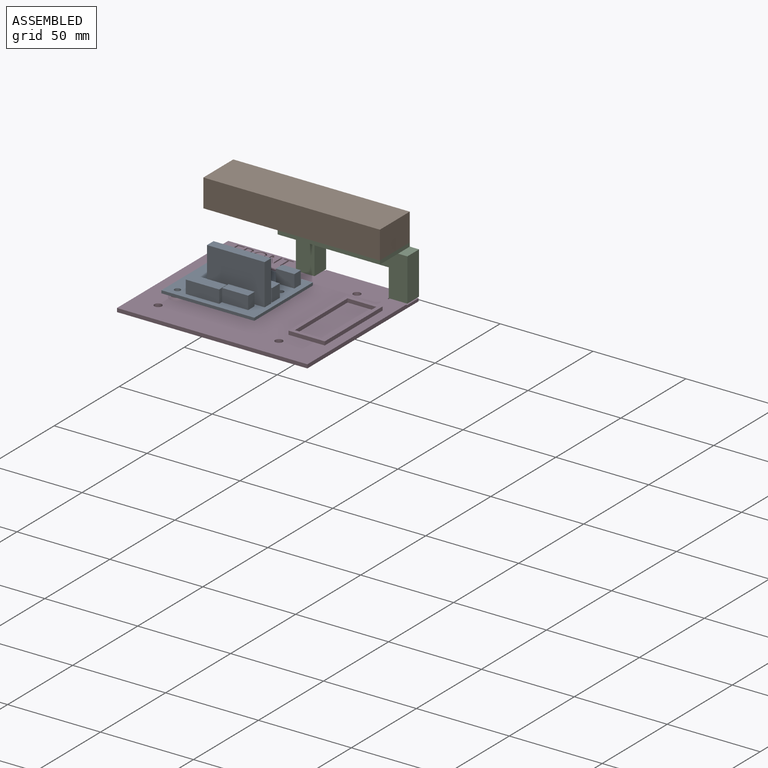
[diagram: assembled view]
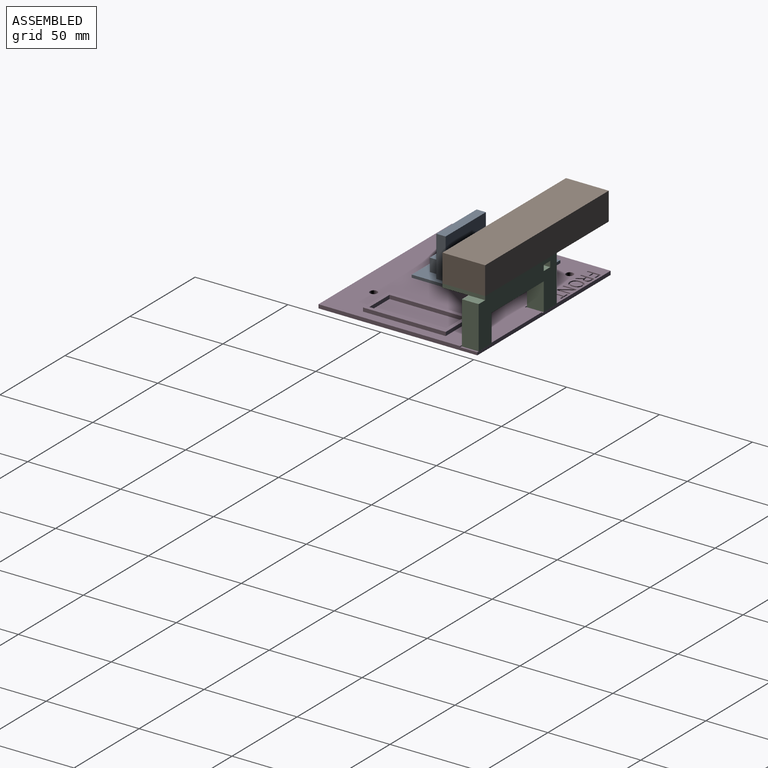
[diagram: assembled view, second angle]
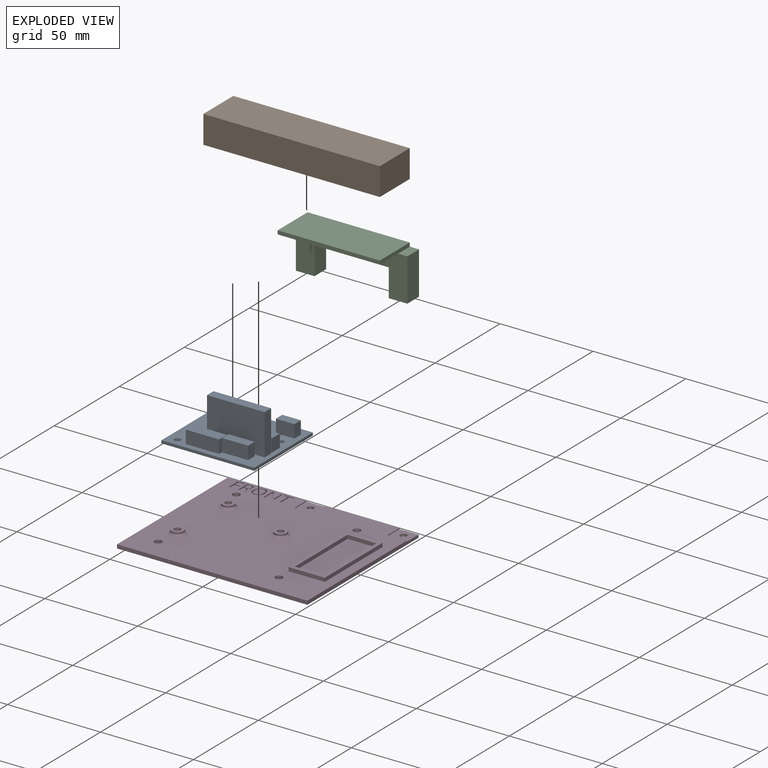
[diagram: exploded view]
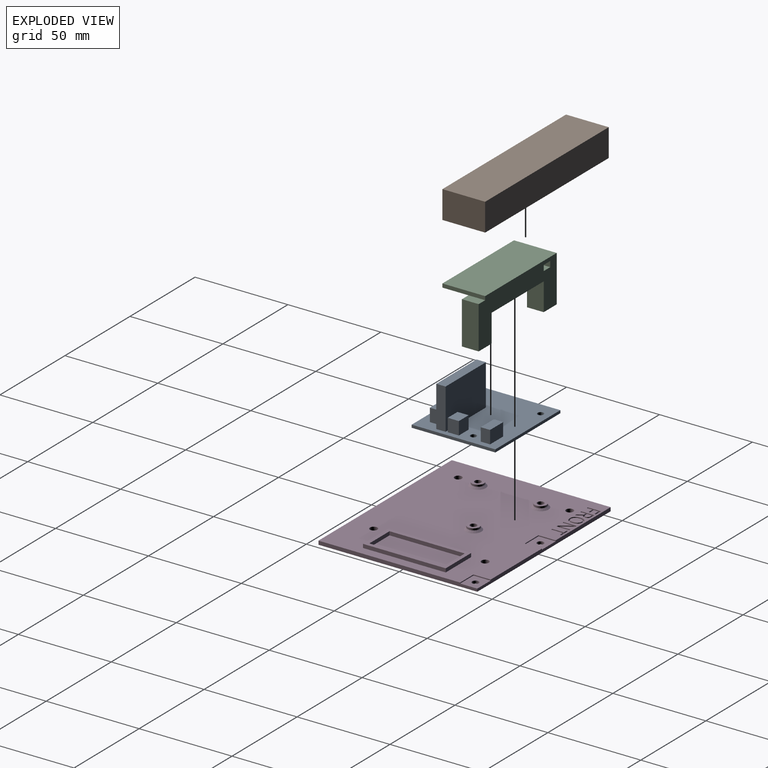
[diagram: exploded view, second angle]
ASSEMBLY  parts=4 mates=2
PART A: 34 faces, bbox 50x45x23.5 mm
  f0: plane 50x45mm, normal (0,0,1), area 1801.1mm2, adj f1,f2,f3,f4,f6,f7,f8,f9
  f1: plane 50x1.5mm, normal (0,-1,0), area 75mm2, adj f0,f2,f4,f5
  f2: plane 45x1.5mm, normal (1,0,0), area 67.5mm2, adj f0,f1,f3,f5
  f3: plane 50x1.5mm, normal (0,1,0), area 75mm2, adj f0,f2,f4,f5
  f4: plane 45x1.5mm, normal (-1,0,0), area 67.5mm2, adj f0,f1,f3,f5
  f5: plane 50x45mm, normal (0,0,-1), area 2225.9mm2, adj f1,f2,f3,f4,f6,f7,f8
  f6: cylinder r=1.6mm len=3.2mm, axis (0,0,1), area 15.1mm2, adj f0,f5
  f7: cylinder r=1.6mm len=3.2mm, axis (0,0,1), area 15.1mm2, adj f0,f5
  f8: cylinder r=1.6mm len=3.2mm, axis (0,0,1), area 15.1mm2, adj f0,f5
  f9: plane 18x7mm, normal (0,-1,0), area 126mm2, adj f0,f10,f12,f13
  f10: plane 7x5.9mm, normal (1,0,0), area 41.3mm2, adj f0,f9,f11,f13
  f11: plane 18x7mm, normal (0,1,0), area 126mm2, adj f0,f10,f12,f13
  f12: plane 7x5.9mm, normal (-1,0,0), area 41.3mm2, adj f0,f9,f11,f13
  f13: plane 18x5.9mm, normal (0,0,1), area 106.2mm2, adj f9,f10,f11,f12
  f14: plane 14x7mm, normal (0,-1,0), area 98mm2, adj f0,f15,f17,f18
  f15: plane 7x4.9mm, normal (1,0,0), area 34.3mm2, adj f0,f14,f16,f18
  f16: plane 14x7mm, normal (0,1,0), area 98mm2, adj f0,f15,f17,f18
  f17: plane 7x4.9mm, normal (-1,0,0), area 34.3mm2, adj f0,f14,f16,f18
  f18: plane 14x4.9mm, normal (0,0,1), area 68.6mm2, adj f14,f15,f16,f17
  f19: plane 7.5x7mm, normal (0,-1,0), area 52.5mm2, adj f0,f20,f22,f23
  f20: plane 7x6mm, normal (1,0,0), area 42mm2, adj f0,f19,f21,f23
  f21: plane 7.5x7mm, normal (0,1,0), area 52.5mm2, adj f0,f20,f22,f23
  f22: plane 7x6mm, normal (-1,0,0), area 42mm2, adj f0,f19,f21,f23
  f23: plane 7.5x6mm, normal (0,0,1), area 45mm2, adj f19,f20,f21,f22
  f24: plane 10x7mm, normal (0,-1,0), area 70mm2, adj f0,f25,f27,f28
  f25: plane 7x5mm, normal (1,0,0), area 35mm2, adj f0,f24,f26,f28
  f26: plane 10x7mm, normal (0,1,0), area 70mm2, adj f0,f25,f27,f28
  f27: plane 7x5mm, normal (-1,0,0), area 35mm2, adj f0,f24,f26,f28
  f28: plane 10x5mm, normal (0,0,1), area 50mm2, adj f24,f25,f26,f27
  f29: plane 31x22mm, normal (0,-1,0), area 682mm2, adj f0,f30,f32,f33
  f30: plane 22x5mm, normal (1,0,0), area 110mm2, adj f0,f29,f31,f33
  f31: plane 31x22mm, normal (0,1,0), area 682mm2, adj f0,f30,f32,f33
  f32: plane 22x5mm, normal (-1,0,0), area 110mm2, adj f0,f29,f31,f33
  f33: plane 31x5mm, normal (0,0,1), area 155mm2, adj f29,f30,f31,f32
PART B: 6 faces, bbox 95x23x15 mm
  f0: plane 95x15mm, normal (0,-1,0), area 1425mm2, adj f1,f3,f4,f5
  f1: plane 23x15mm, normal (1,0,0), area 345mm2, adj f0,f2,f4,f5
  f2: plane 95x15mm, normal (0,1,0), area 1425mm2, adj f1,f3,f4,f5
  f3: plane 23x15mm, normal (-1,0,0), area 345mm2, adj f0,f2,f4,f5
  f4: plane 95x23mm, normal (0,0,1), area 2185mm2, adj f0,f1,f2,f3
  f5: plane 95x23mm, normal (0,0,-1), area 2185mm2, adj f0,f1,f2,f3
PART C: 21 faces, bbox 60x23x25 mm
  f0: plane 10x9mm, normal (0,0,-1), area 85.1mm2, adj f1,f4,f5,f11,f18
  f1: plane 60x25mm, normal (0,1,0), area 875mm2, adj f0,f2,f5,f6,f7,f12,f13,f14
  f2: plane 23x9mm, normal (1,0,0), area 207mm2, adj f1,f4,f7,f13
  f3: plane 55x2mm, normal (0,-1,0), area 110mm2, adj f5,f6,f12,f14
  f4: plane 60x23mm, normal (0,-1,0), area 765mm2, adj f0,f2,f5,f7,f12,f13,f15,f16
  f5: plane 25x23mm, normal (-1,0,0), area 253mm2, adj f0,f1,f3,f4,f6,f12
  f6: plane 55x23mm, normal (0,0,1), area 1265mm2, adj f1,f3,f5,f14
  f7: plane 10x9mm, normal (0,0,-1), area 85.1mm2, adj f1,f2,f4,f9,f20
  f8: cone r=0mm half-angle=59deg, axis (0,0,-1), area 5.7mm2, adj f9
  f9: cylinder r=1.25mm len=10mm, axis (0,0,-1), area 78.5mm2, adj f7,f8
  f10: cone r=0mm half-angle=59deg, axis (0,0,-1), area 5.7mm2, adj f11
  f11: cylinder r=1.25mm len=10mm, axis (0,0,-1), area 78.5mm2, adj f0,f10
  f12: plane 55x23mm, normal (0,0,-1), area 815mm2, adj f1,f3,f4,f5,f14,f16,f17
  f13: plane 9x5mm, normal (0,0,1), area 45mm2, adj f1,f2,f4,f14
  f14: plane 23x2mm, normal (1,0,0), area 46mm2, adj f1,f3,f6,f12,f13
  f15: plane 9x5mm, normal (0,0,1), area 45mm2, adj f1,f4,f16,f17
  f16: plane 9x3mm, normal (-1,0,0), area 27mm2, adj f1,f4,f12,f15
  f17: plane 9x3mm, normal (1,0,0), area 27mm2, adj f1,f4,f12,f15
  f18: plane 15x9mm, normal (1,0,0), area 135mm2, adj f0,f1,f4,f19
  f19: plane 40x9mm, normal (0,0,-1), area 360mm2, adj f1,f4,f18,f20
  f20: plane 15x9mm, normal (-1,0,0), area 135mm2, adj f1,f4,f7,f19
PART D: 115 faces, bbox 102.5x85.5x4 mm
  f0: plane 85.5x2mm, normal (1,0,0), area 166.4mm2, adj f1,f4,f6,f8,f113,f114
  f1: plane 102.5x2mm, normal (0,1,0), area 194.6mm2, adj f0,f4,f7,f8,f108,f110,f111,f112
  f2: cylinder r=1.75mm len=3.5mm, axis (0,0,1), area 16.5mm2, adj f8,f114
  f3: cylinder r=1.75mm len=3.5mm, axis (0,0,1), area 16.5mm2, adj f8,f111
  f4: plane 102.5x85.5mm, normal (0,0,1), area 7389.7mm2, adj f0,f1,f6,f7,f9,f10,f11,f12
  f5: plane 44.5x19.5mm, normal (0,0,1), area 240mm2, adj f13,f14,f15,f16,f17,f18,f19,f20
  f6: plane 102.5x2mm, normal (0,-1,0), area 205mm2, adj f0,f4,f7,f8
  f7: plane 85.5x2mm, normal (-1,0,0), area 171mm2, adj f1,f4,f6,f8
  f8: plane 102.5x85.5mm, normal (0,0,-1), area 8665.4mm2, adj f0,f1,f2,f3,f6,f7,f9,f10
  f9: cylinder r=2mm len=4mm, axis (0,0,1), area 25.1mm2, adj f4,f8
  f10: cylinder r=2mm len=4mm, axis (0,0,1), area 25.1mm2, adj f4,f8
  f11: cylinder r=2mm len=4mm, axis (0,0,1), area 25.1mm2, adj f4,f8
  f12: cylinder r=2mm len=4mm, axis (0,0,1), area 25.1mm2, adj f4,f8
  f13: plane 44.5x2mm, normal (-1,0,0), area 89mm2, adj f4,f5,f14,f16
  f14: plane 19.5x2mm, normal (0,-1,0), area 39mm2, adj f4,f5,f13,f15
  f15: plane 44.5x2mm, normal (1,0,0), area 89mm2, adj f4,f5,f14,f16
  f16: plane 19.5x2mm, normal (0,1,0), area 39mm2, adj f4,f5,f13,f15
  f17: plane 40.5x2mm, normal (1,0,0), area 81mm2, adj f5,f18,f20,f21
  f18: plane 15.5x2mm, normal (0,1,0), area 31mm2, adj f5,f17,f19,f21
  f19: plane 40.5x2mm, normal (-1,0,0), area 81mm2, adj f5,f18,f20,f21
  f20: plane 15.5x2mm, normal (0,-1,0), area 31mm2, adj f5,f17,f19,f21
  f21: plane 40.5x15.5mm, normal (0,0,1), area 627.7mm2, adj f17,f18,f19,f20
  f22: cylinder r=1.75mm len=4mm, axis (0,0,1), area 44mm2, adj f8,f102
  f23: cylinder r=1.75mm len=4mm, axis (0,0,1), area 44mm2, adj f8,f104
  f24: cylinder r=1.75mm len=4mm, axis (0,0,1), area 44mm2, adj f8,f100
  f25: plane 1x0.76mm, normal (0,-1,0), area 0.8mm2, adj f4,f26,f39,f40
  f26: plane 4x1mm, normal (1,0,0), area 4mm2, adj f4,f25,f27,f40
  f27: extruded ~1x1mm, area 1mm2, adj f4,f26,f28,f40
  f28: extruded ~1x0.83mm, area 0.8mm2, adj f4,f27,f29,f40
  f29: plane 1x0.04mm, normal (0,-1,0), area 0mm2, adj f4,f28,f30,f40
  f30: plane 5.83x3.8mm, normal (-0.84,-0.55,0), area 7mm2, adj f4,f29,f31,f40
  f31: plane 1x0.92mm, normal (0,-1,0), area 0.9mm2, adj f4,f30,f32,f40
  f32: plane 6.97x1mm, normal (1,0,0), area 7mm2, adj f4,f31,f33,f40
  f33: plane 1x0.75mm, normal (0,1,0), area 0.7mm2, adj f4,f32,f34,f40
  f34: plane 3.96x1mm, normal (-1,0,0), area 4mm2, adj f4,f33,f35,f40
  f35: extruded ~1.89x1mm, area 1.9mm2, adj f4,f34,f36,f40
  f36: plane 1x0.04mm, normal (0,1,0), area 0mm2, adj f4,f35,f37,f40
  f37: plane 5.85x3.81mm, normal (0.84,0.55,0), area 7mm2, adj f4,f36,f38,f40
  f38: plane 1x0.93mm, normal (0,1,0), area 0.9mm2, adj f4,f37,f39,f40
  f39: plane 6.97x1mm, normal (-1,0,0), area 7mm2, adj f4,f25,f38,f40
  f40: plane 6.97x5.45mm, normal (0,0,1), area 16.1mm2, adj f25,f26,f27,f28,f29,f30,f31,f32
  f41: plane 2.89x1mm, normal (0,1,0), area 2.9mm2, adj f4,f42,f50,f51
  f42: plane 1x0.72mm, normal (-1,0,0), area 0.7mm2, adj f4,f41,f43,f51
  f43: plane 2.89x1mm, normal (0,-1,0), area 2.9mm2, adj f4,f42,f44,f51
  f44: plane 2.55x1mm, normal (-1,0,0), area 2.6mm2, adj f4,f43,f45,f51
  f45: plane 3.08x1mm, normal (0,1,0), area 3.1mm2, adj f4,f44,f46,f51
  f46: plane 1x0.72mm, normal (-1,0,0), area 0.7mm2, adj f4,f45,f47,f51
  f47: plane 3.89x1mm, normal (0,-1,0), area 3.9mm2, adj f4,f46,f48,f51
  f48: plane 6.97x1mm, normal (1,0,0), area 7mm2, adj f4,f47,f49,f51
  f49: plane 1x0.81mm, normal (0,1,0), area 0.8mm2, adj f4,f48,f50,f51
  f50: plane 2.98x1mm, normal (-1,0,0), area 3mm2, adj f4,f41,f49,f51
  f51: plane 6.97x3.89mm, normal (0,0,1), area 10mm2, adj f41,f42,f43,f44,f45,f46,f47,f48
  f52: extruded ~1.76x1mm, area 2mm2, adj f53,f66,f68,f69
  f53: extruded ~1.74x1mm, area 2mm2, adj f52,f54,f68,f69
  f54: extruded ~2.13x1mm, area 2.3mm2, adj f53,f55,f68,f69
  f55: extruded ~2.15x1mm, area 2.3mm2, adj f54,f56,f68,f69
  f56: extruded ~1.75x1mm, area 2mm2, adj f55,f57,f68,f69
  f57: extruded ~1.75x1mm, area 2mm2, adj f56,f58,f68,f69
  f58: extruded ~2.15x1mm, area 2.3mm2, adj f57,f66,f68,f69
  f59: extruded ~2.35x1mm, area 2.6mm2, adj f4,f60,f67,f68
  f60: extruded ~2.38x1mm, area 2.6mm2, adj f4,f59,f61,f68
  f61: extruded ~2.64x1mm, area 2.8mm2, adj f4,f60,f62,f68
  f62: extruded ~2.66x1mm, area 2.9mm2, adj f4,f61,f63,f68
  f63: extruded ~2.38x1mm, area 2.6mm2, adj f4,f62,f64,f68
  f64: extruded ~2.35x1mm, area 2.6mm2, adj f4,f63,f65,f68
  f65: extruded ~2.63x1mm, area 2.8mm2, adj f4,f64,f67,f68
  f66: extruded ~2.13x1mm, area 2.3mm2, adj f52,f58,f68,f69
  f67: extruded ~2.63x1mm, area 2.8mm2, adj f4,f59,f65,f68
  f68: plane 7.18x6.42mm, normal (0,0,1), area 15.4mm2, adj f52,f53,f54,f55,f56,f57,f58,f59
  f69: plane 5.74x4.7mm, normal (0,0,1), area 22.4mm2, adj f52,f53,f54,f55,f56,f57,f58,f66
  f70: plane 1.05x1mm, normal (0,1,0), area 1.1mm2, adj f71,f86,f88,f89
  f71: extruded ~1.31x1mm, area 1.4mm2, adj f70,f72,f88,f89
  f72: extruded ~1x1mm, area 1.1mm2, adj f71,f73,f88,f89
  f73: extruded ~1.02x1mm, area 1.1mm2, adj f72,f74,f88,f89
  f74: extruded ~1.26x1mm, area 1.3mm2, adj f73,f75,f88,f89
  f75: plane 1.11x1mm, normal (0,-1,0), area 1.1mm2, adj f74,f86,f88,f89
  f76: plane 2.9x1.69mm, normal (0.86,0.5,0), area 3.4mm2, adj f4,f77,f87,f88
  f77: plane 1x0.96mm, normal (0,1,0), area 1mm2, adj f4,f76,f78,f88
  f78: plane 3.13x1.89mm, normal (-0.86,-0.52,0), area 3.7mm2, adj f4,f77,f79,f88
  f79: extruded ~1.87x1.4mm, area 2.5mm2, adj f4,f78,f80,f88
  f80: extruded ~1.48x1mm, area 1.7mm2, adj f4,f79,f81,f88
  f81: extruded ~1.9x1mm, area 2mm2, adj f4,f80,f82,f88
  f82: plane 1.91x1mm, normal (0,-1,0), area 1.9mm2, adj f4,f81,f83,f88
  f83: plane 6.97x1mm, normal (1,0,0), area 7mm2, adj f4,f82,f84,f88
  f84: plane 1x0.81mm, normal (0,1,0), area 0.8mm2, adj f4,f83,f85,f88
  f85: plane 2.9x1mm, normal (-1,0,0), area 2.9mm2, adj f4,f84,f87,f88
  f86: plane 2.67x1mm, normal (-1,0,0), area 2.7mm2, adj f70,f75,f88,f89
  f87: plane 1.46x1mm, normal (0,1,0), area 1.5mm2, adj f4,f76,f85,f88
  f88: plane 6.97x4.91mm, normal (0,0,1), area 14.6mm2, adj f70,f71,f72,f73,f74,f75,f76,f77
  f89: plane 2.77x2.67mm, normal (0,0,1), area 6.7mm2, adj f70,f71,f72,f73,f74,f75,f86
  f90: plane 2.21x1mm, normal (0,1,0), area 2.2mm2, adj f4,f91,f97,f98
  f91: plane 1x0.72mm, normal (-1,0,0), area 0.7mm2, adj f4,f90,f92,f98
  f92: plane 5.23x1mm, normal (0,-1,0), area 5.2mm2, adj f4,f91,f93,f98
  f93: plane 1x0.72mm, normal (1,0,0), area 0.7mm2, adj f4,f92,f94,f98
  f94: plane 2.21x1mm, normal (0,1,0), area 2.2mm2, adj f4,f93,f95,f98
  f95: plane 6.25x1mm, normal (1,0,0), area 6.3mm2, adj f4,f94,f96,f98
  f96: plane 1x0.81mm, normal (0,1,0), area 0.8mm2, adj f4,f95,f97,f98
  f97: plane 6.25x1mm, normal (-1,0,0), area 6.3mm2, adj f4,f90,f96,f98
  f98: plane 6.97x5.23mm, normal (0,0,1), area 8.8mm2, adj f90,f91,f92,f93,f94,f95,f96,f97
  f99: cylinder r=3.25mm len=6.5mm, axis (0,0,1), area 20.4mm2, adj f100,f107
  f100: plane 6.5x6.5mm, normal (0,0,1), area 23.6mm2, adj f24,f99
  f101: cylinder r=3.25mm len=6.5mm, axis (0,0,1), area 20.4mm2, adj f102,f105
  f102: plane 6.5x6.5mm, normal (0,0,1), area 23.6mm2, adj f22,f101
  f103: cylinder r=3.25mm len=6.5mm, axis (0,0,1), area 20.4mm2, adj f104,f106
  f104: plane 6.5x6.5mm, normal (0,0,1), area 23.6mm2, adj f23,f103
  f105: cone r=3.25mm half-angle=45deg, axis (0,0,-1), area 33.3mm2, adj f4,f101
  f106: cone r=3.25mm half-angle=45deg, axis (0,0,-1), area 33.3mm2, adj f4,f103
  f107: cone r=3.25mm half-angle=45deg, axis (0,0,-1), area 33.3mm2, adj f4,f99
  f108: plane 9.25x0.5mm, normal (1,0,0), area 4.6mm2, adj f1,f4,f109,f111
  f109: plane 10.5x0.5mm, normal (0,1,0), area 5.2mm2, adj f4,f108,f110,f111
  f110: plane 9.25x0.5mm, normal (-1,0,0), area 4.6mm2, adj f1,f4,f109,f111
  f111: plane 10.5x9.25mm, normal (0,0,1), area 87.5mm2, adj f1,f3,f108,f109,f110
  f112: plane 9.25x0.5mm, normal (1,0,0), area 4.6mm2, adj f1,f4,f113,f114
  f113: plane 10.25x0.5mm, normal (0,1,0), area 5.1mm2, adj f0,f4,f112,f114
  f114: plane 10.25x9.25mm, normal (0,0,1), area 85.2mm2, adj f0,f1,f2,f112,f113
PLACE A rot(axis=(0,0,1),180deg) t=(-16.56,0.09,4)mm
PLACE B t=(-1.49,31.94,27)mm
PLACE C t=(21.01,38.94,2)mm
PLACE D t=(-0.06,0.09,0)mm
MATE fastened B.f5 <-> C.f6  axis (0,0,-1) through (46.01,31.94,27)mm
MATE fastened D.f22 <-> A.f8  axis (0,0,1) through (2.34,6.59,4)mm
